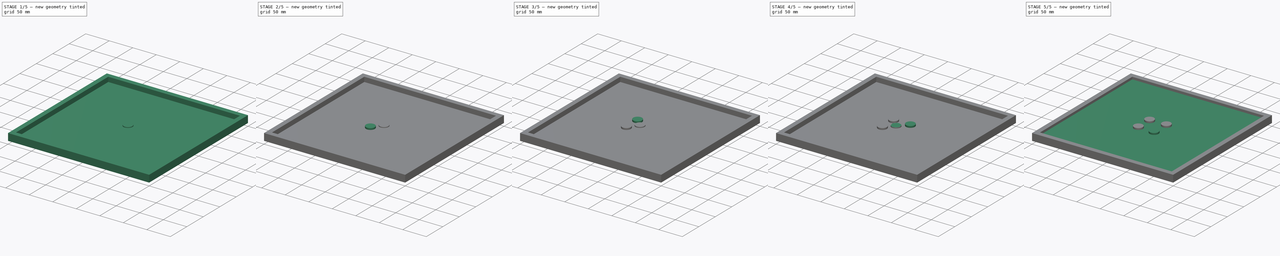
[diagram: build sequence overview — one tinted view per stage of 5, left to right]
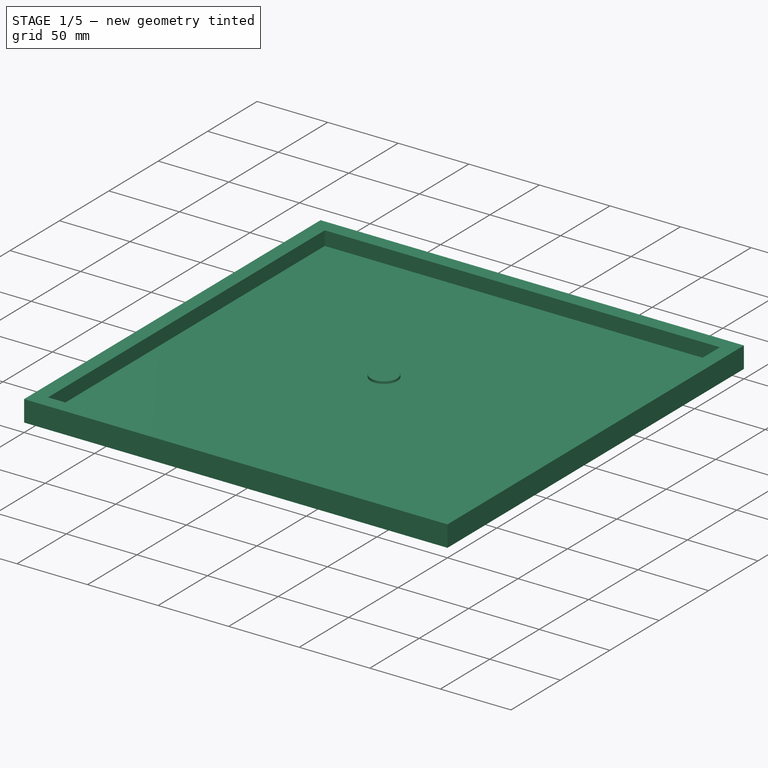
[diagram: stage 1 of 5 — iso view after this stage's code; geometry added in this stage tinted green]
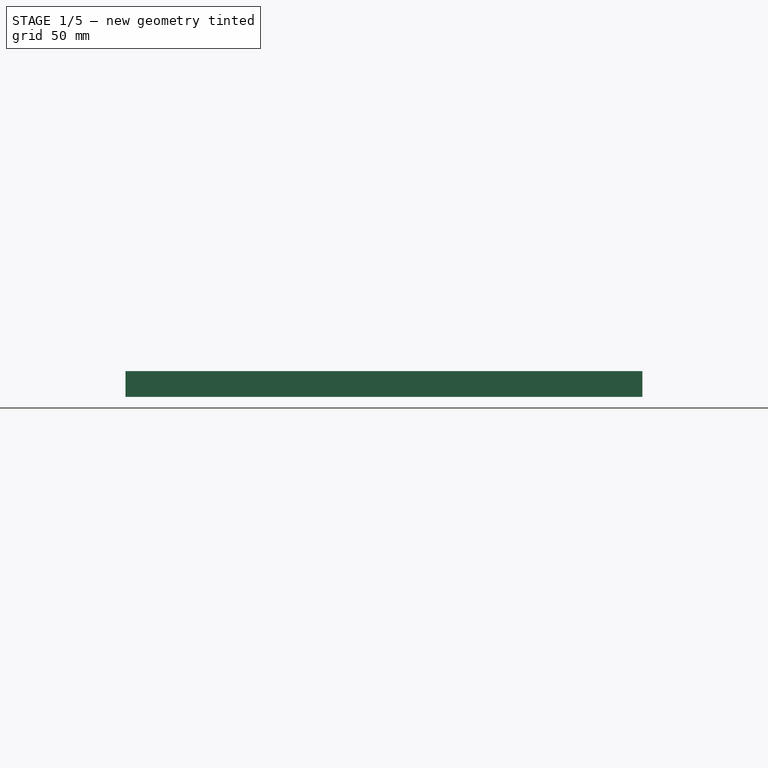
[diagram: stage 1 of 5 — front view after this stage's code; geometry added in this stage tinted green]
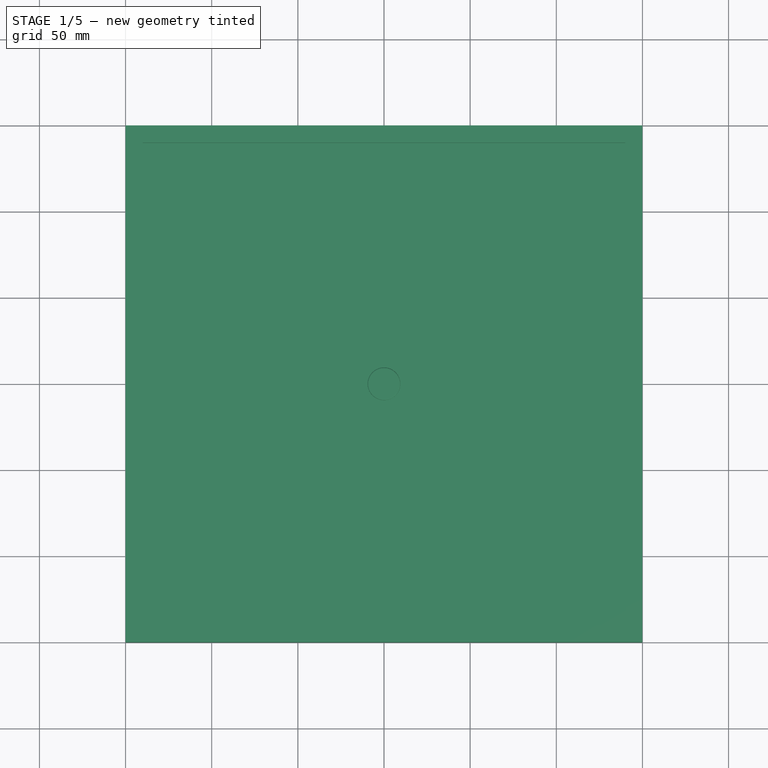
[diagram: stage 1 of 5 — top view after this stage's code; geometry added in this stage tinted green]
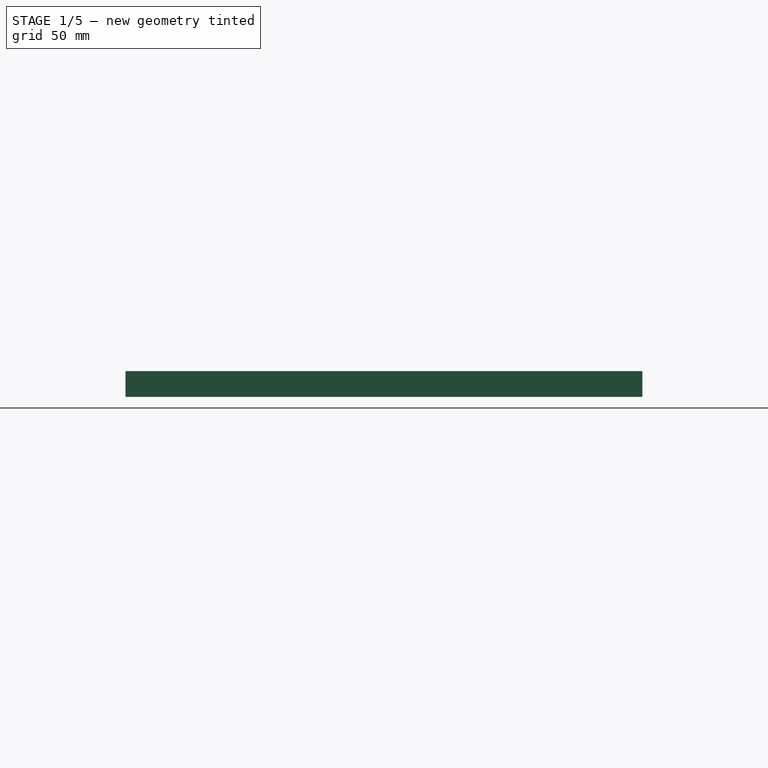
[diagram: stage 1 of 5 — right view after this stage's code; geometry added in this stage tinted green]
FCSTD DOCUMENT  (FreeCAD 0.19R24291 (Git))
Label: board_and_disc
License: All rights reserved
LicenseURL: http://en.wikipedia.org/wiki/All_rights_reserved
objects: Part::Part2DObjectPython×15, Part::Cylinder×8, Part::Fillet×8, Part::MultiFuse×6, Part::Box×2, Sketcher::SketchObject×1, PartDesign::Pad×1, PartDesign::Body×1, Image::ImagePlane×1
note: 43 computed .brp shape members not serialized (recipe doc carries the construction recipe); baked Part::Feature solids carry a one-line shape summary decoded from their .brp

FEATURE [Sketcher::SketchObject] Sketch
  FullyConstrained = false
  MapMode = 5
  Support = -> [XY_Plane]
  sketch-geometry (8):
    g0: LineSegment StartX=-140 StartY=140 StartZ=0 EndX=140 EndY=140 EndZ=0
    g1: LineSegment StartX=140 StartY=140 StartZ=0 EndX=140 EndY=-140 EndZ=0
    g2: LineSegment StartX=140 StartY=-140 StartZ=0 EndX=-140 EndY=-140 EndZ=0
    g3: LineSegment StartX=-140 StartY=-140 StartZ=0 EndX=-140 EndY=140 EndZ=0
    g4: LineSegment StartX=-150 StartY=150 StartZ=0 EndX=150 EndY=150 EndZ=0
    g5: LineSegment StartX=150 StartY=150 StartZ=0 EndX=150 EndY=-150 EndZ=0
    g6: LineSegment StartX=150 StartY=-150 StartZ=0 EndX=-150 EndY=-150 EndZ=0
    g7: LineSegment StartX=-150 StartY=-150 StartZ=0 EndX=-150 EndY=150 EndZ=0
  constraints (20):
    c: Coincident(g0,g1)
    c: Coincident(g1,g2)
    c: Coincident(g2,g3)
    c: Coincident(g3,g0)
    c: Horizontal(g0)
    c: Horizontal(g2)
    c: Vertical(g1)
    c: Vertical(g3)
    c: Coincident(g4,g5)
    c: Coincident(g5,g6)
    c: Coincident(g6,g7)
    c: Coincident(g7,g4)
    c: Horizontal(g4)
    c: Horizontal(g6)
    c: Vertical(g5)
    c: Vertical(g7)
    c: Distance(g6) = 300
    c: DistanceX(g4,g-1) = 150
    c: DistanceY(g4,g-1) = -150
    c: Distance(g7) = 300
FEATURE [PartDesign::Pad] Pad
  Direction = (1,1,1)
  Length = 15
  Length2 = 100
  Profile = -> Sketch
  Type = 0
FEATURE [Part::Cylinder] Cylinder007
  Angle = 360
  AttacherType = Attacher::AttachEngine3D
  Height = 2
  Placement = pos=(0,0,12) rot=(0,0,1;0rad)
  Radius = 9.5
FEATURE [Part::Fillet] Fillet007
  Base = -> Cylinder007
  Edges = 1 edges r=0.5: [Edge1]
FEATURE [Part::Box] Box001  label="Cube001"
  AttacherType = Attacher::AttachEngine3D
  Height = 5
  Length = 280
  Placement = pos=(-140,-140,0) rot=(0,0,1;0rad)
  Width = 280
FEATURE [Part::MultiFuse] Fusion  label="board_frame"
  Shapes = -> [Body,Box001]
FEATURE [Image::ImagePlane] ImagePlane  label="grid_svg"
  Placement = pos=(0,0,10) rot=(0,0,1;0rad)
  XSize = 267
  YSize = 267
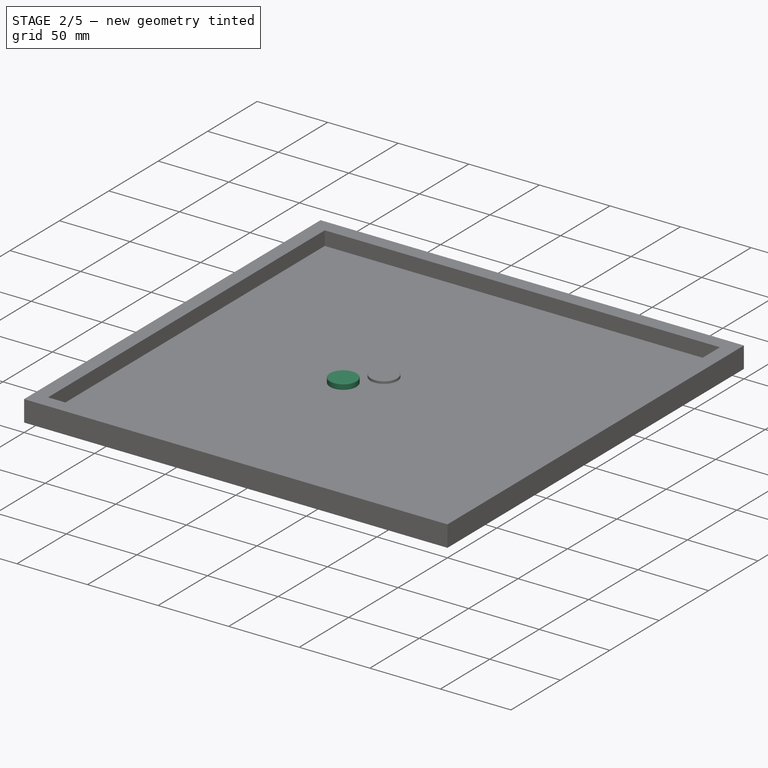
[diagram: stage 2 of 5 — iso view after this stage's code; geometry added in this stage tinted green]
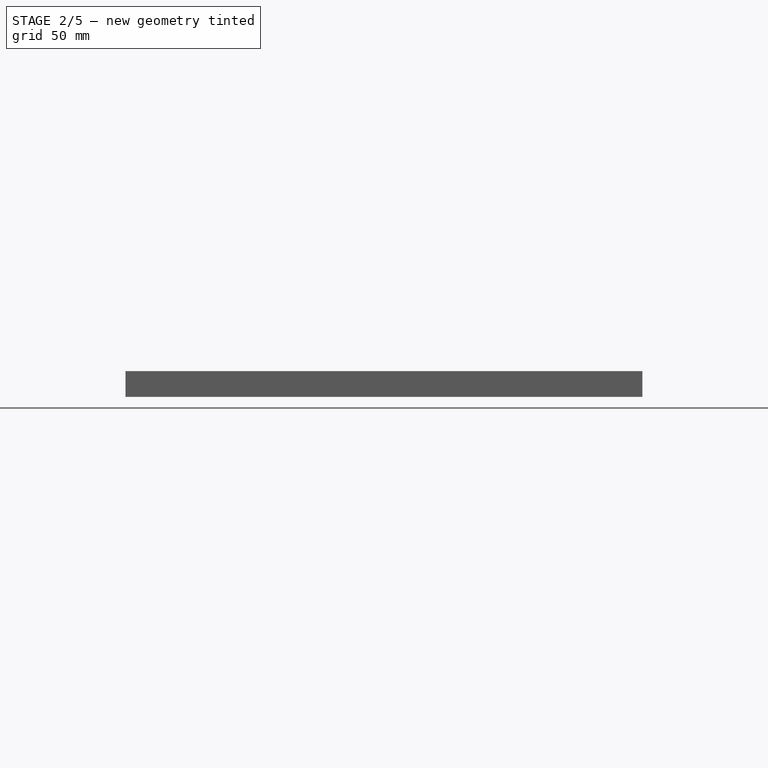
[diagram: stage 2 of 5 — front view after this stage's code; geometry added in this stage tinted green]
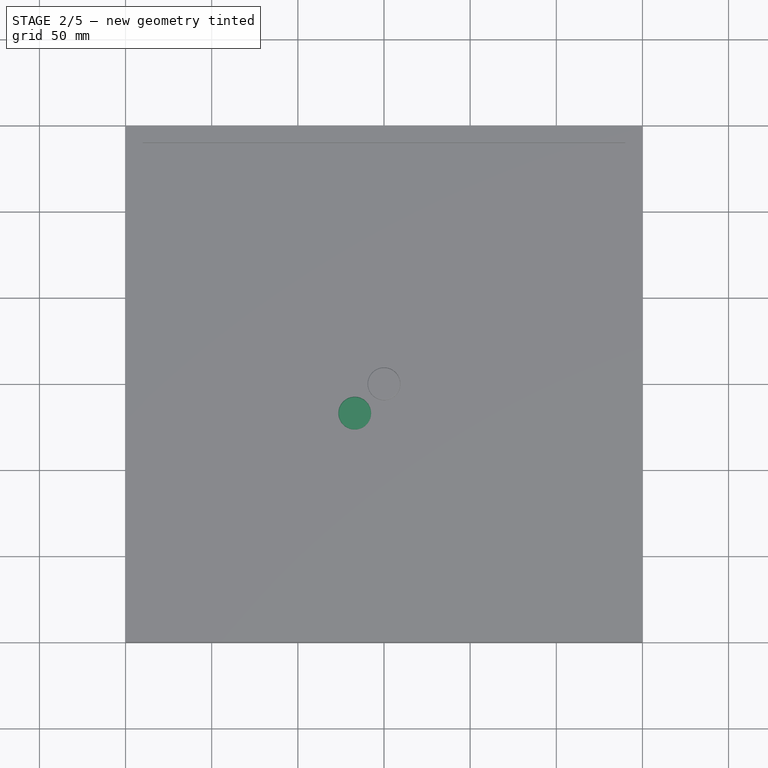
[diagram: stage 2 of 5 — top view after this stage's code; geometry added in this stage tinted green]
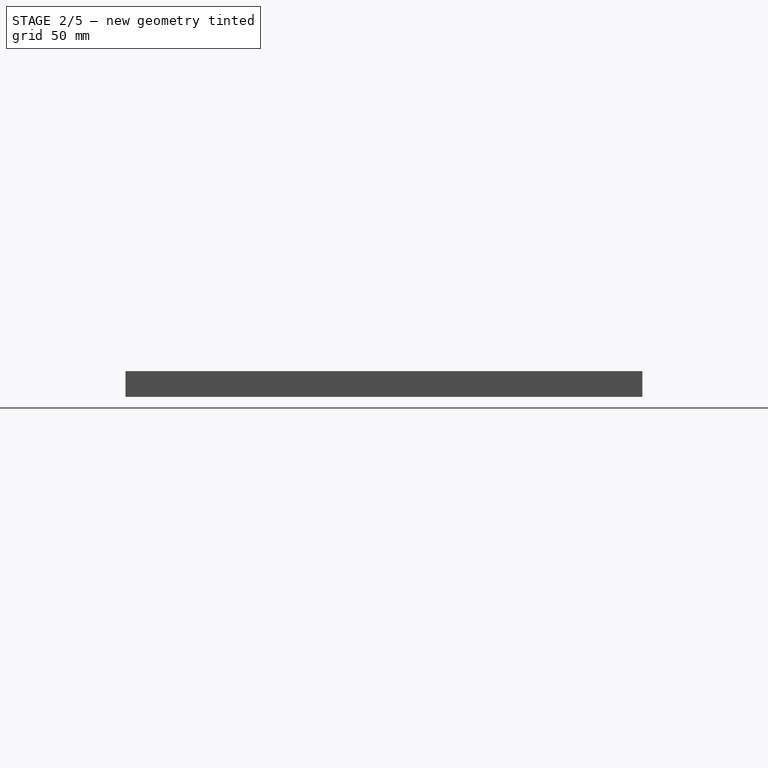
[diagram: stage 2 of 5 — right view after this stage's code; geometry added in this stage tinted green]
FEATURE [Part::Cylinder] Cylinder005
  Angle = 360
  AttacherType = Attacher::AttachEngine3D
  Height = 2
  Placement = pos=(0,0,12) rot=(0,0,1;0rad)
  Radius = 9.5
FEATURE [Part::Fillet] Fillet005
  Base = -> Cylinder005
  Edges = 1 edges r=0.5: [Edge1]
FEATURE [Part::Cylinder] Cylinder006
  Angle = 360
  AttacherType = Attacher::AttachEngine3D
  Height = 2
  Placement = pos=(0,0,11) rot=(0,0,1;0rad)
  Radius = 9.5
FEATURE [Part::Fillet] Fillet006
  Base = -> Cylinder006
  Edges = 1 edges r=0.5: [Edge3]
  Placement = pos=(0,0,-1) rot=(0,0,1;0rad)
FEATURE [Part::MultiFuse] Fusion005  label="disc003"
  Placement = pos=(-17,-17,24) rot=(0,1,0;3.14159rad)
  Shapes = -> [Fillet006,Fillet007]
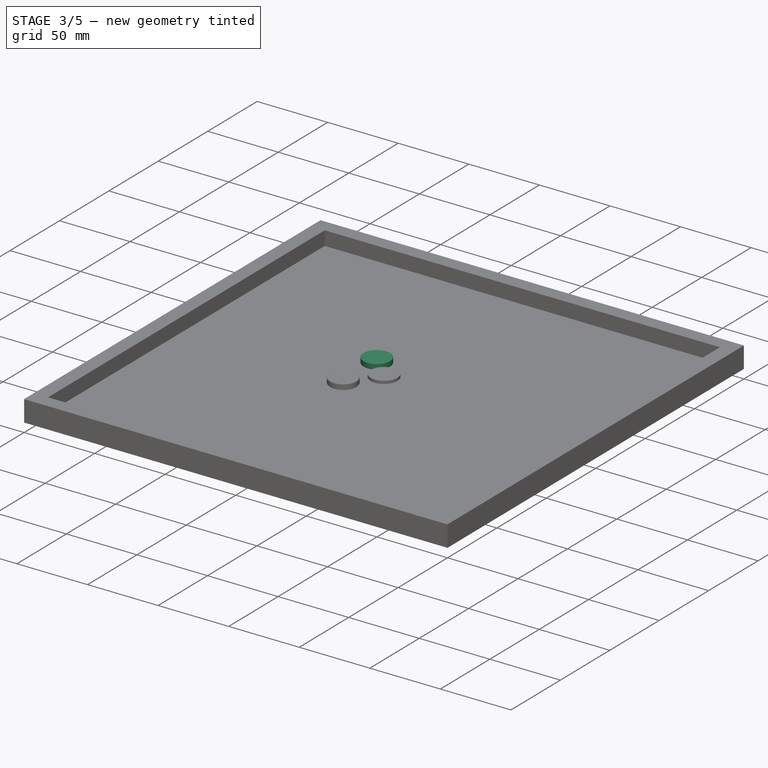
[diagram: stage 3 of 5 — iso view after this stage's code; geometry added in this stage tinted green]
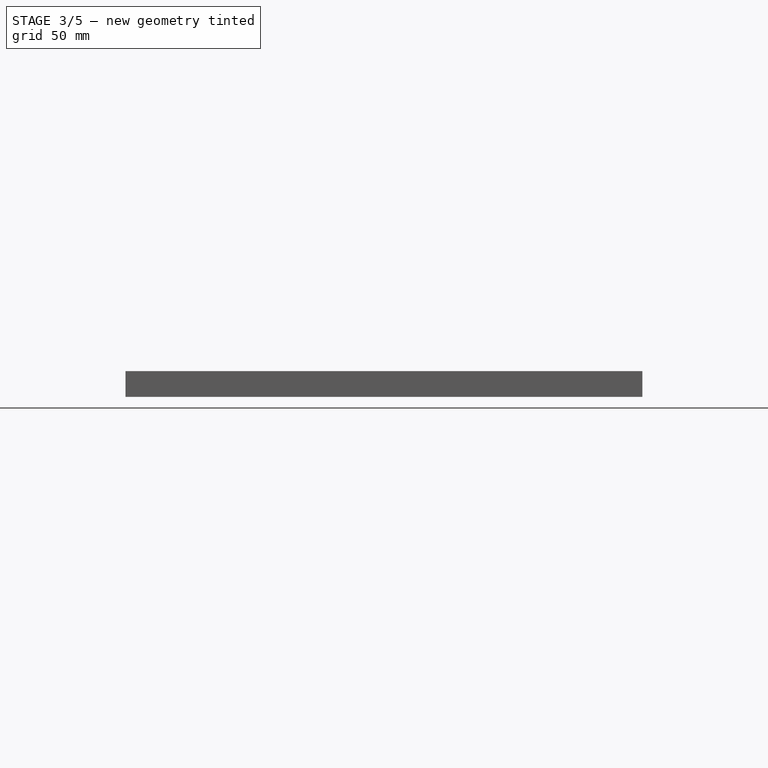
[diagram: stage 3 of 5 — front view after this stage's code; geometry added in this stage tinted green]
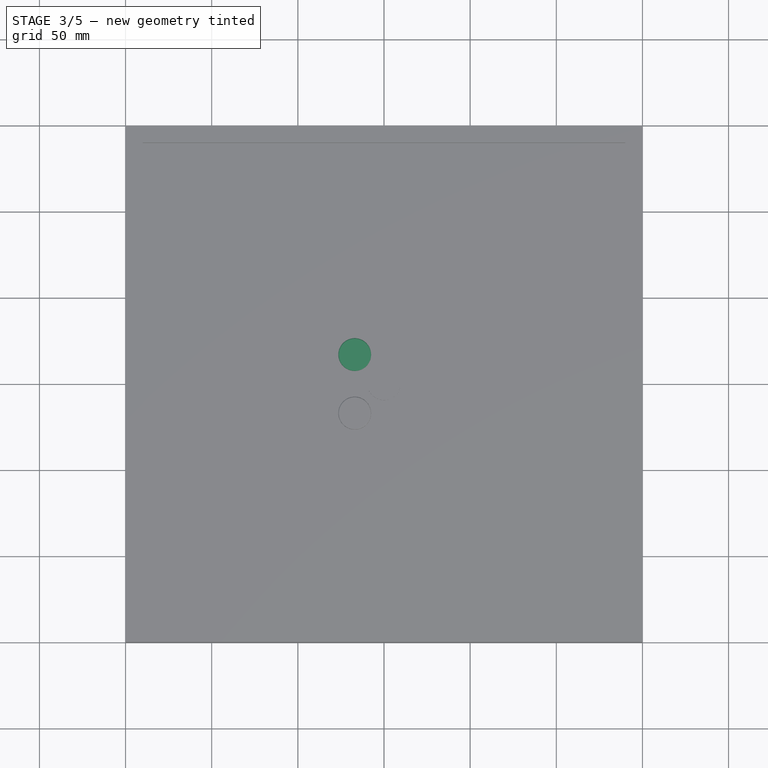
[diagram: stage 3 of 5 — top view after this stage's code; geometry added in this stage tinted green]
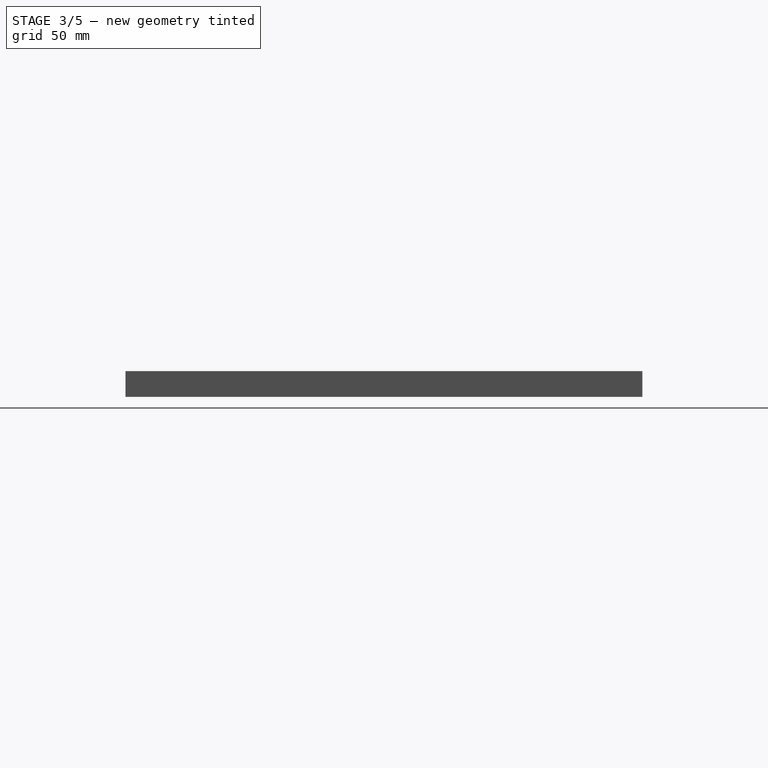
[diagram: stage 3 of 5 — right view after this stage's code; geometry added in this stage tinted green]
FEATURE [Part::Cylinder] Cylinder002
  Angle = 360
  AttacherType = Attacher::AttachEngine3D
  Height = 2
  Placement = pos=(0,0,12) rot=(0,0,1;0rad)
  Radius = 9.5
FEATURE [Part::Part2DObjectPython] Line  # Draft 2D object (typed FeaturePython)
  Area = 0
  ChamferSize = 0
  Closed = false
  End = (-105,140,0)
  FilletRadius = 0
  Length = 280
  MakeFace = false
  Placement = pos=(-122.5,-140,0) rot=(0,0,1;0rad)
  Points = (2) [(17.5,0,0),(17.5,280,0)]
  Start = (-105,-140,0)
  Subdivisions = 0
FEATURE [Part::Part2DObjectPython] Line001  # Draft 2D object (typed FeaturePython)
  Area = 0
  ChamferSize = 0
  Closed = false
  End = (-70,140,0)
  FilletRadius = 0
  Length = 280
  MakeFace = false
  Placement = pos=(-122.5,-140,0) rot=(0,0,1;0rad)
  Points = (2) [(52.5,0,0),(52.5,280,0)]
  Start = (-70,-140,0)
  Subdivisions = 0
FEATURE [Part::Part2DObjectPython] Line002  # Draft 2D object (typed FeaturePython)
  Area = 0
  ChamferSize = 0
  Closed = false
  End = (-35,140,0)
  FilletRadius = 0
  Length = 280
  MakeFace = false
  Placement = pos=(-122.5,-140,0) rot=(0,0,1;0rad)
  Points = (2) [(87.5,0,0),(87.5,280,0)]
  Start = (-35,-140,0)
  Subdivisions = 0
FEATURE [Part::Part2DObjectPython] Line003  # Draft 2D object (typed FeaturePython)
  Area = 0
  ChamferSize = 0
  Closed = false
  End = (0,140,0)
  FilletRadius = 0
  Length = 280
  MakeFace = false
  Placement = pos=(-122.5,-140,0) rot=(0,0,1;0rad)
  Points = (2) [(122.5,0,0),(122.5,280,0)]
  Start = (0,-140,0)
  Subdivisions = 0
FEATURE [Part::Part2DObjectPython] Line004  # Draft 2D object (typed FeaturePython)
  Area = 0
  ChamferSize = 0
  Closed = false
  End = (35,140,0)
  FilletRadius = 0
  Length = 280
  MakeFace = false
  Placement = pos=(-122.5,-140,0) rot=(0,0,1;0rad)
  Points = (2) [(157.5,0,0),(157.5,280,0)]
  Start = (35,-140,0)
  Subdivisions = 0
FEATURE [Part::Part2DObjectPython] Line005  # Draft 2D object (typed FeaturePython)
  Area = 0
  ChamferSize = 0
  Closed = false
  End = (70,140,0)
  FilletRadius = 0
  Length = 280
  MakeFace = false
  Placement = pos=(-122.5,-140,0) rot=(0,0,1;0rad)
  Points = (2) [(192.5,0,0),(192.5,280,0)]
  Start = (70,-140,0)
  Subdivisions = 0
FEATURE [Part::Part2DObjectPython] Line006  # Draft 2D object (typed FeaturePython)
  Area = 0
  ChamferSize = 0
  Closed = false
  End = (105,140,0)
  FilletRadius = 0
  Length = 280
  MakeFace = false
  Placement = pos=(-122.5,-140,0) rot=(0,0,1;0rad)
  Points = (2) [(227.5,0,0),(227.5,280,0)]
  Start = (105,-140,0)
  Subdivisions = 0
FEATURE [Part::Part2DObjectPython] Line007  # Draft 2D object (typed FeaturePython)
  Area = 0
  ChamferSize = 0
  Closed = false
  End = (140,-105,0)
  FilletRadius = 0
  Length = 280
  MakeFace = false
  Placement = pos=(-140.318,-105.802,0) rot=(0,0,1;0rad)
  Points = (2) [(0.317511,0.80233,0),(280.318,0.80233,0)]
  Start = (-140,-105,0)
  Subdivisions = 0
FEATURE [Part::Part2DObjectPython] Line008  # Draft 2D object (typed FeaturePython)
  Area = 0
  ChamferSize = 0
  Closed = false
  End = (140,-70,0)
  FilletRadius = 0
  Length = 280
  MakeFace = false
  Placement = pos=(-140.318,-105.802,0) rot=(0,0,1;0rad)
  Points = (2) [(0.317511,35.8023,0),(280.318,35.8023,0)]
  Start = (-140,-70,0)
  Subdivisions = 0
FEATURE [Part::Part2DObjectPython] Line009  # Draft 2D object (typed FeaturePython)
  Area = 0
  ChamferSize = 0
  Closed = false
  End = (140,-35,0)
  FilletRadius = 0
  Length = 280
  MakeFace = false
  Placement = pos=(-140.318,-105.802,0) rot=(0,0,1;0rad)
  Points = (2) [(0.317511,70.8023,0),(280.318,70.8023,0)]
  Start = (-140,-35,0)
  Subdivisions = 0
FEATURE [Part::Part2DObjectPython] Line010  # Draft 2D object (typed FeaturePython)
  Area = 0
  ChamferSize = 0
  Closed = false
  End = (140,0,0)
  FilletRadius = 0
  Length = 280
  MakeFace = false
  Placement = pos=(-140.318,-105.802,0) rot=(0,0,1;0rad)
  Points = (2) [(0.317511,105.802,0),(280.318,105.802,0)]
  Start = (-140,0,0)
  Subdivisions = 0
FEATURE [Part::Part2DObjectPython] Line011  # Draft 2D object (typed FeaturePython)
  Area = 0
  ChamferSize = 0
  Closed = false
  End = (140,35,0)
  FilletRadius = 0
  Length = 280
  MakeFace = false
  Placement = pos=(-140.318,-105.802,0) rot=(0,0,1;0rad)
  Points = (2) [(0.317511,140.802,0),(280.318,140.802,0)]
  Start = (-140,35,0)
  Subdivisions = 0
FEATURE [Part::Part2DObjectPython] Line012  # Draft 2D object (typed FeaturePython)
  Area = 0
  ChamferSize = 0
  Closed = false
  End = (140,70,0)
  FilletRadius = 0
  Length = 280
  MakeFace = false
  Placement = pos=(-140.318,-105.802,0) rot=(0,0,1;0rad)
  Points = (2) [(0.317511,175.802,0),(280.318,175.802,0)]
  Start = (-140,70,0)
  Subdivisions = 0
FEATURE [Part::Part2DObjectPython] Line013  # Draft 2D object (typed FeaturePython)
  Area = 0
  ChamferSize = 0
  Closed = false
  End = (140,105,0)
  FilletRadius = 0
  Length = 280
  MakeFace = false
  Placement = pos=(-140.318,-105.802,0) rot=(0,0,1;0rad)
  Points = (2) [(0.317511,210.802,0),(280.318,210.802,0)]
  Start = (-140,105,0)
  Subdivisions = 0
FEATURE [Part::Part2DObjectPython] Rectangle  # Draft 2D object (typed FeaturePython)
  Area = 0
  ChamferSize = 0
  Columns = 1
  FilletRadius = 0
  Height = 280
  Length = 280
  MakeFace = false
  Placement = pos=(-140,-140,0) rot=(0,0,1;0rad)
  Rows = 1
FEATURE [Part::MultiFuse] Fusion003  label="grid"
  Placement = pos=(0,0,10) rot=(0,0,1;0rad)
  Shapes = -> [Rectangle,Line013,Line012,Line011,Line010,Line009,Line008,Line007,Line006,Line004,Line005,Line002,Line003,Line001,Line]
FEATURE [Part::Cylinder] Cylinder004
  Angle = 360
  AttacherType = Attacher::AttachEngine3D
  Height = 2
  Placement = pos=(0,0,11) rot=(0,0,1;0rad)
  Radius = 9.5
FEATURE [Part::Fillet] Fillet004
  Base = -> Cylinder004
  Edges = 1 edges r=0.5: [Edge3]
  Placement = pos=(0,0,-1) rot=(0,0,1;0rad)
FEATURE [Part::MultiFuse] Fusion004  label="disc002"
  Placement = pos=(-17,17,0) rot=(0,0,1;0rad)
  Shapes = -> [Fillet004,Fillet005]
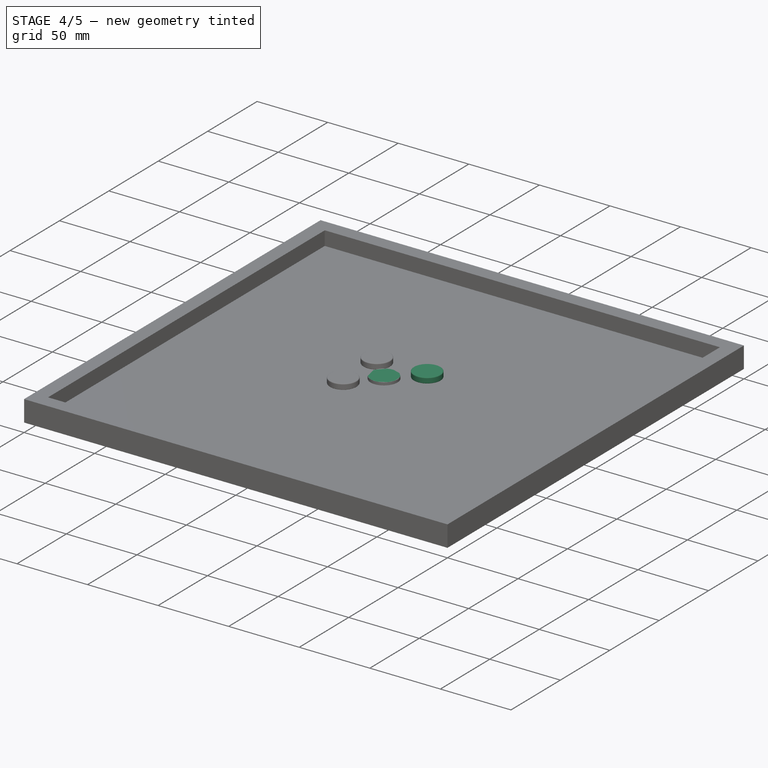
[diagram: stage 4 of 5 — iso view after this stage's code; geometry added in this stage tinted green]
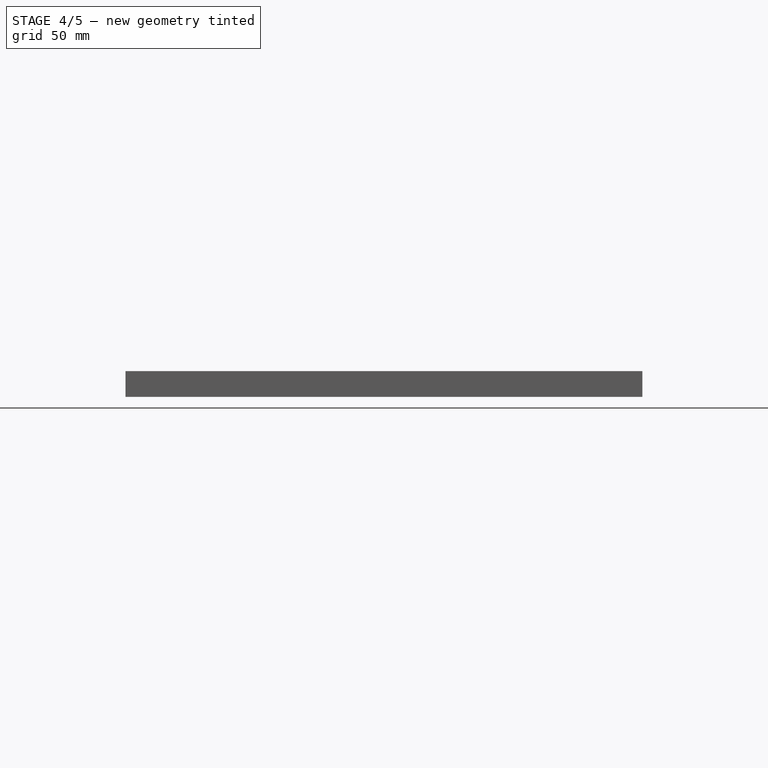
[diagram: stage 4 of 5 — front view after this stage's code; geometry added in this stage tinted green]
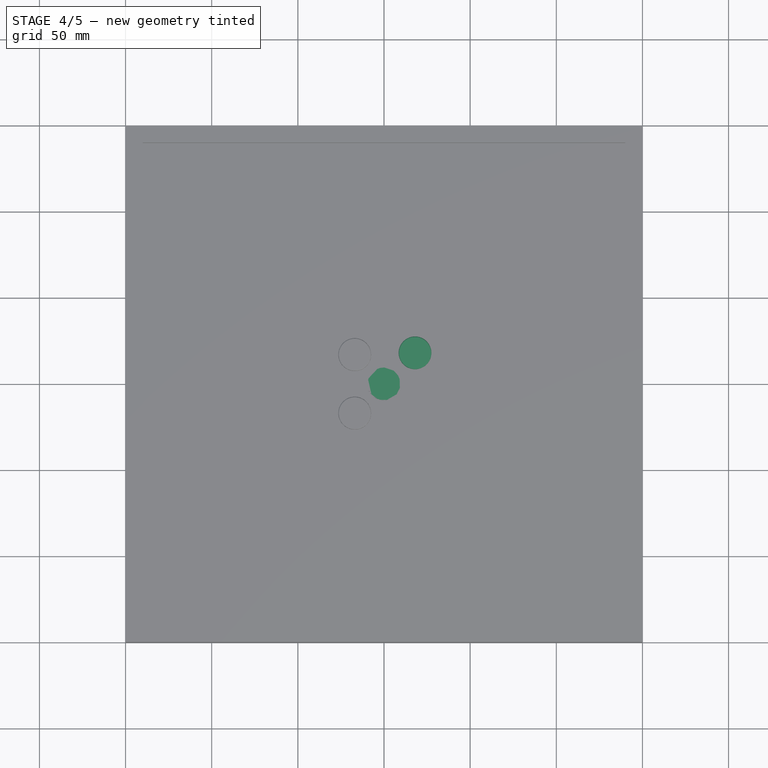
[diagram: stage 4 of 5 — top view after this stage's code; geometry added in this stage tinted green]
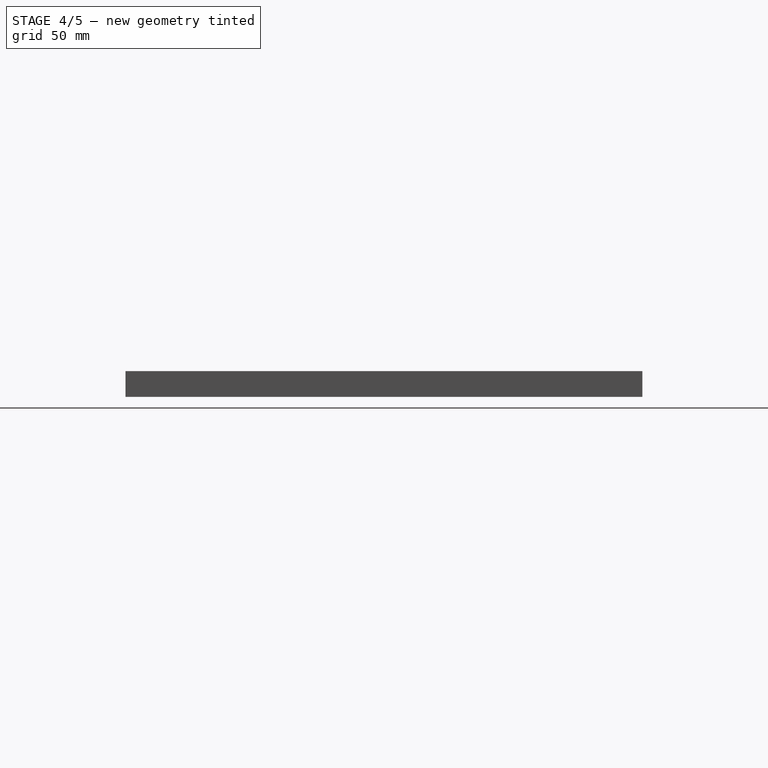
[diagram: stage 4 of 5 — right view after this stage's code; geometry added in this stage tinted green]
FEATURE [Part::Cylinder] Cylinder
  Angle = 360
  AttacherType = Attacher::AttachEngine3D
  Height = 2
  Placement = pos=(0,0,11) rot=(0,0,1;0rad)
  Radius = 9.5
FEATURE [Part::Cylinder] Cylinder003
  Angle = 360
  AttacherType = Attacher::AttachEngine3D
  Height = 2
  Placement = pos=(0,0,11) rot=(0,0,1;0rad)
  Radius = 9.5
FEATURE [Part::Fillet] Fillet002
  Base = -> Cylinder003
  Edges = 1 edges r=0.5: [Edge3]
  Placement = pos=(0,0,-1) rot=(0,0,1;0rad)
FEATURE [Part::Fillet] Fillet003
  Base = -> Cylinder002
  Edges = 1 edges r=0.5: [Edge1]
FEATURE [Part::MultiFuse] Fusion002  label="disc"
  Placement = pos=(18,18,24) rot=(0,1,0;3.14159rad)
  Shapes = -> [Fillet002,Fillet003]
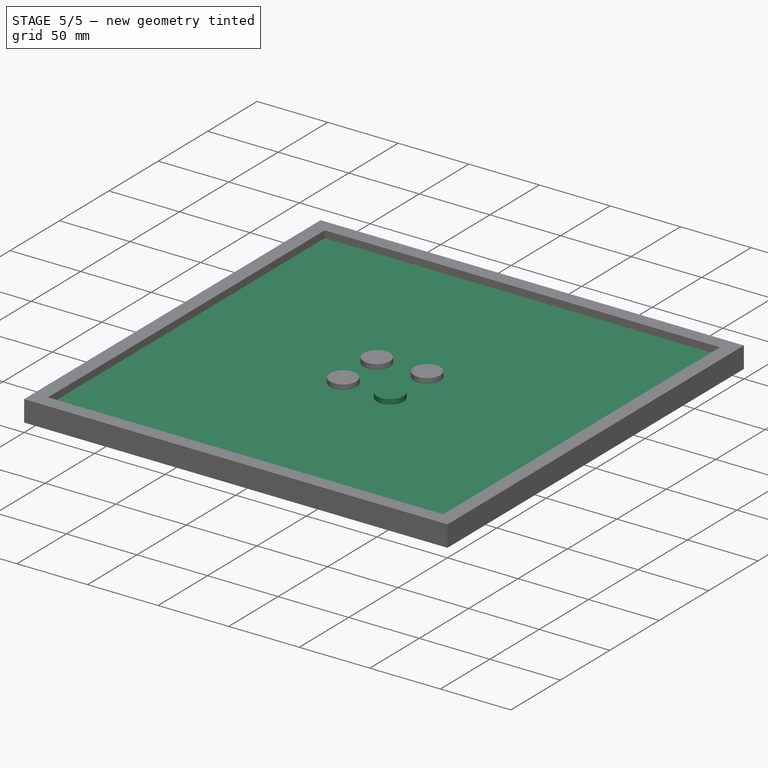
[diagram: stage 5 of 5 — iso view after this stage's code; geometry added in this stage tinted green]
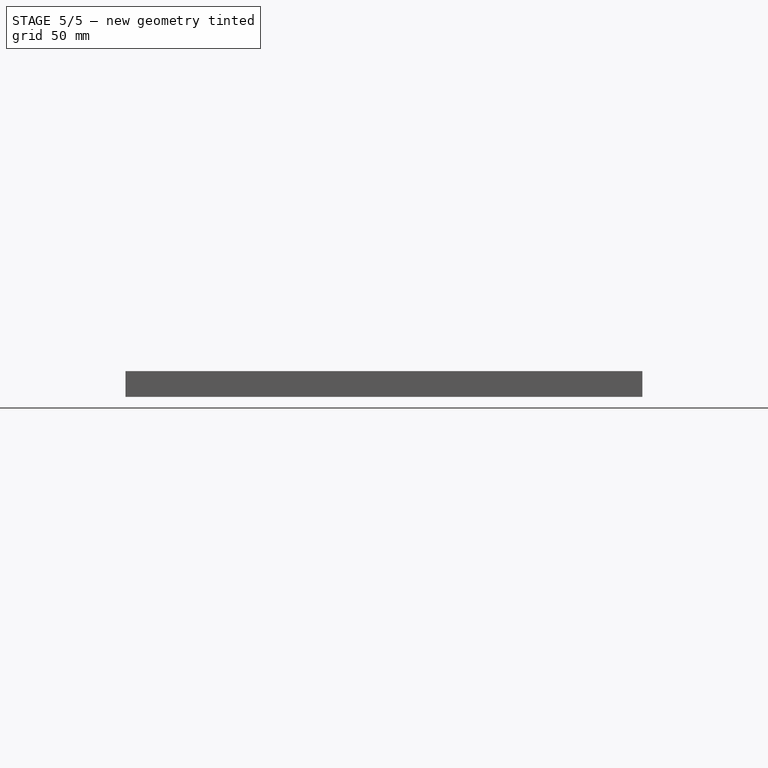
[diagram: stage 5 of 5 — front view after this stage's code; geometry added in this stage tinted green]
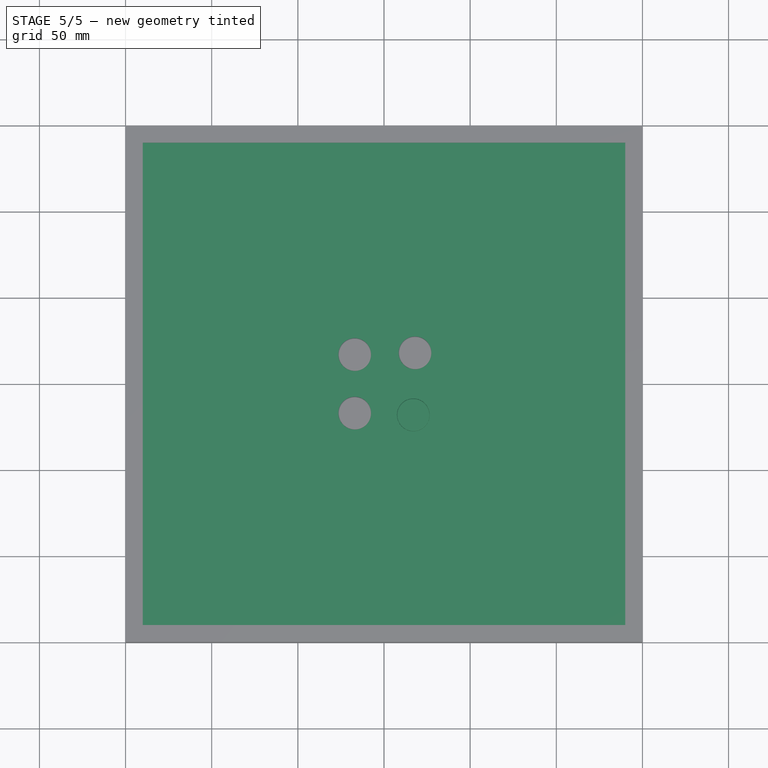
[diagram: stage 5 of 5 — top view after this stage's code; geometry added in this stage tinted green]
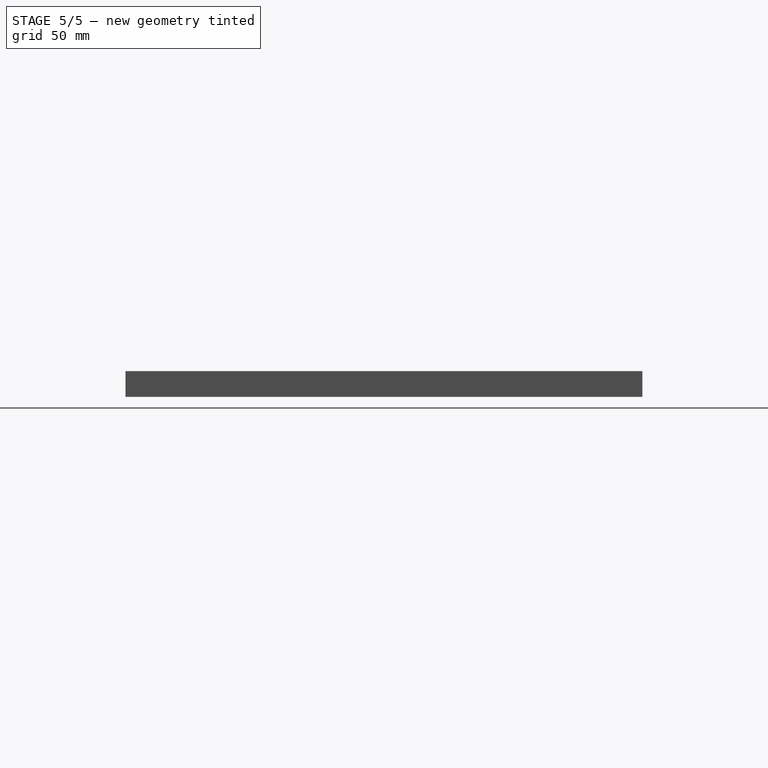
[diagram: stage 5 of 5 — right view after this stage's code; geometry added in this stage tinted green]
FEATURE [PartDesign::Body] Body
  Group = -> [Sketch,Pad]
  Origin = -> Origin
  Tip = -> Pad
FEATURE [Part::Box] Box  label="board"
  AttacherType = Attacher::AttachEngine3D
  Height = 5
  Length = 280
  Placement = pos=(-140,-140,5) rot=(0,0,1;0rad)
  Width = 280
FEATURE [Part::Cylinder] Cylinder001
  Angle = 360
  AttacherType = Attacher::AttachEngine3D
  Height = 2
  Placement = pos=(0,0,12) rot=(0,0,1;0rad)
  Radius = 9.5
FEATURE [Part::Fillet] Fillet
  Base = -> Cylinder001
  Edges = 1 edges r=0.5: [Edge1]
FEATURE [Part::Fillet] Fillet001
  Base = -> Cylinder
  Edges = 1 edges r=0.5: [Edge3]
  Placement = pos=(0,0,-1) rot=(0,0,1;0rad)
FEATURE [Part::MultiFuse] Fusion001  label="disc001"
  Placement = pos=(17,-18,0) rot=(0,0,1;0rad)
  Shapes = -> [Fillet001,Fillet]
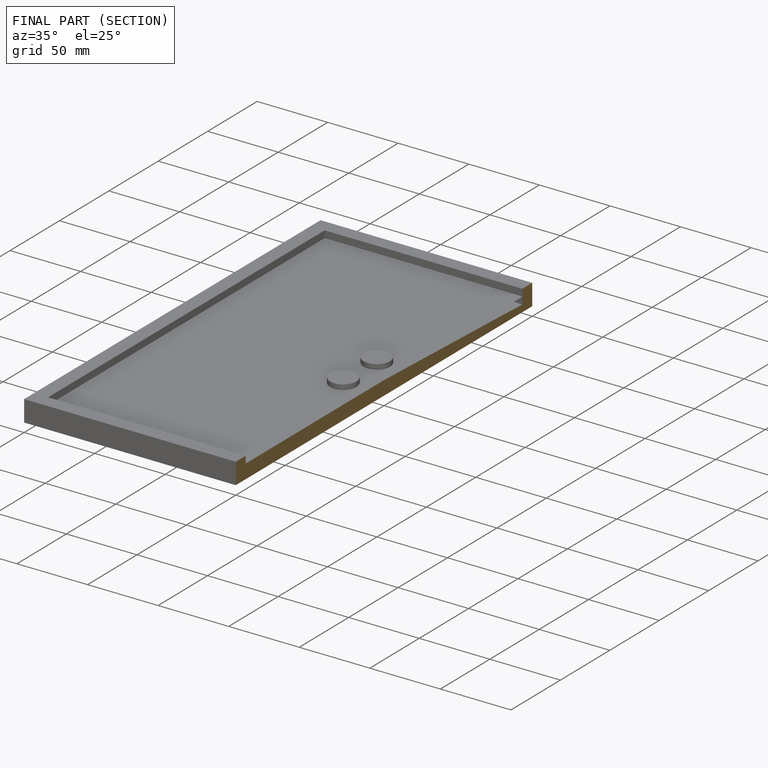
[diagram: finished part — half-section view (interior)]
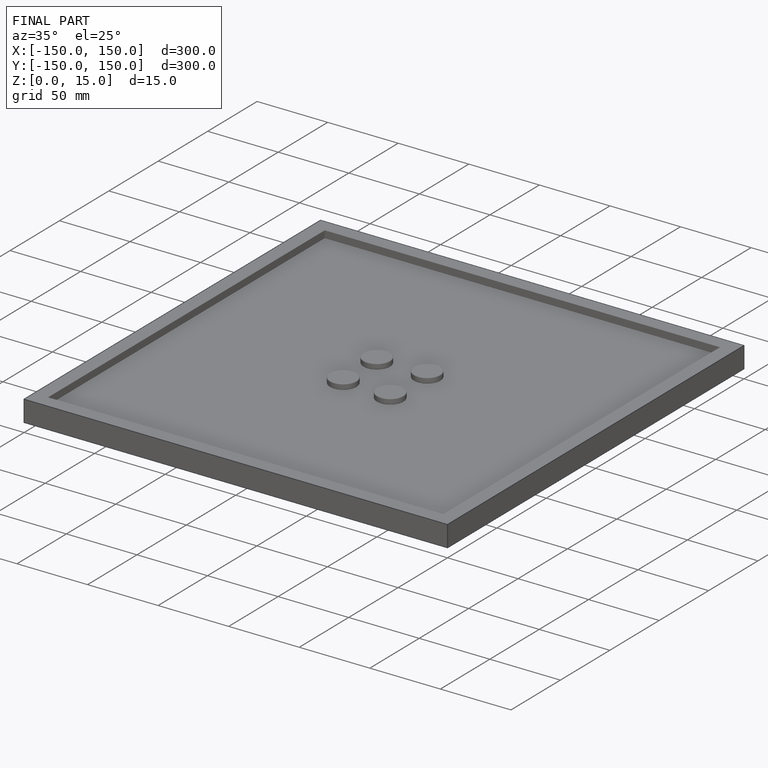
[diagram: finished part — iso view with bounding-box wireframe]
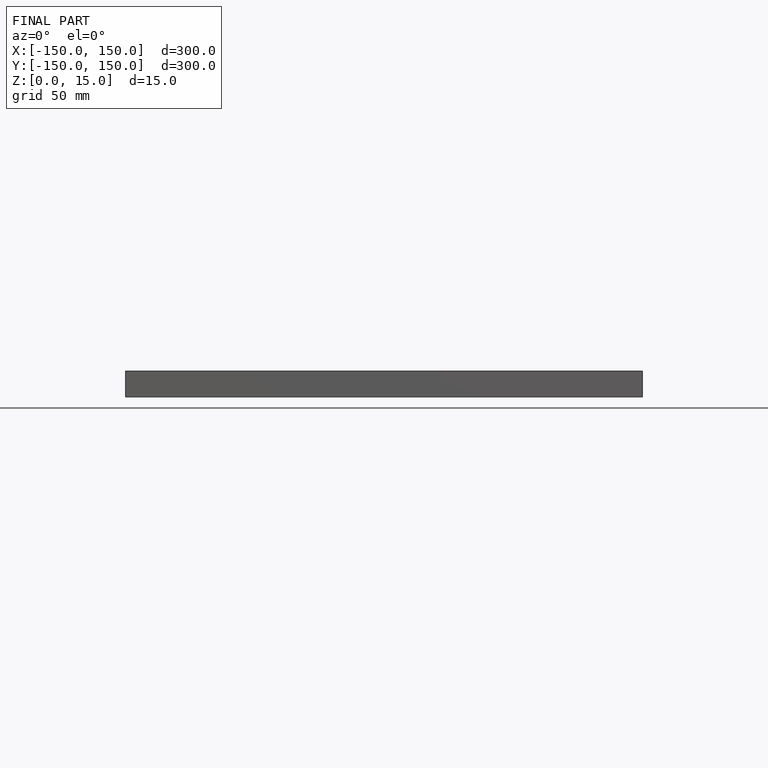
[diagram: finished part — front view with bounding-box wireframe]
